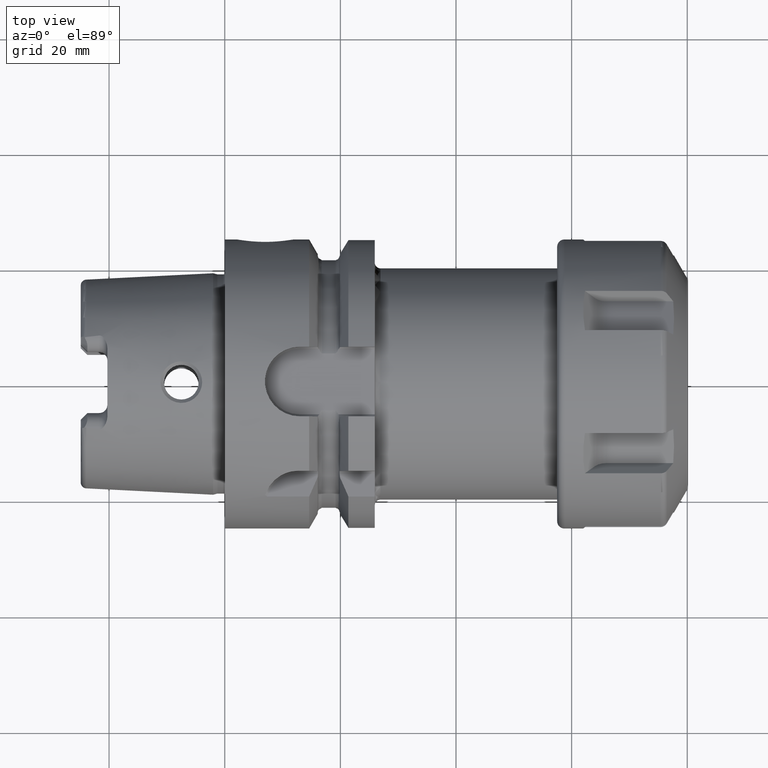
[diagram: clean part render]
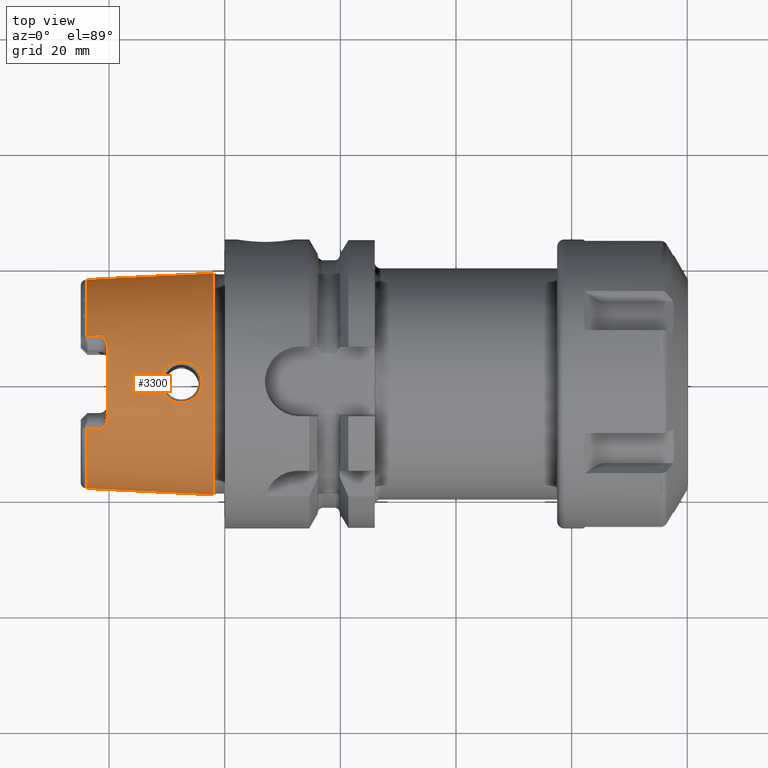
[diagram: same view with one face highlighted and labeled with its STEP entity id]
A machine part, top view. The second image highlights one B-rep face of the part: STEP entity #3300.
In plain terms, the highlighted conical surface has half-angle 2.868 deg.
Its self-contained STEP definition (entity closure, byte-faithful):
#2=CARTESIAN_POINT('',(-2.395003724237E1,-7.848512546022E0,1.626E1));
#3=CARTESIAN_POINT('',(-2.357924685714E1,-7.891247063705E0,1.626E1));
#4=CARTESIAN_POINT('',(-2.283344964494E1,-7.976635944030E0,1.626E1));
#5=CARTESIAN_POINT('',(-2.207922143332E1,-8.061880664518E0,1.626E1));
#6=CARTESIAN_POINT('',(-2.17E1,-8.104470797584E0,1.626E1));
#8=CARTESIAN_POINT('',(-2.03E1,0.E0,0.E0));
#9=DIRECTION('',(1.E0,0.E0,0.E0));
#10=DIRECTION('',(0.E0,3.252089046527E-1,9.456421988969E-1));
#11=AXIS2_PLACEMENT_3D('',#8,#9,#10);
#13=CARTESIAN_POINT('',(-2.17E1,8.104470797584E0,1.626E1));
#14=CARTESIAN_POINT('',(-2.207921342399E1,8.061881564041E0,1.626E1));
#15=CARTESIAN_POINT('',(-2.283343362880E1,7.976637765712E0,1.626E1));
#16=CARTESIAN_POINT('',(-2.357923885045E1,7.891247986496E0,1.626E1));
#17=CARTESIAN_POINT('',(-2.395003724237E1,7.848512546022E0,1.626E1));
#19=CARTESIAN_POINT('',(-2.E0,0.E0,0.E0));
#20=DIRECTION('',(1.E0,0.E0,0.E0));
#21=DIRECTION('',(0.E0,1.E0,0.E0));
#22=AXIS2_PLACEMENT_3D('',#19,#20,#21);
#24=CARTESIAN_POINT('',(-1.109929870960E1,-3.014221416256E-9,1.869887476944E1));
#25=CARTESIAN_POINT('',(-1.109945925242E1,1.886319535952E-1,1.869886672624E1));
#26=CARTESIAN_POINT('',(-1.107009168020E1,5.664763956957E-1,1.869480469033E1));
#27=CARTESIAN_POINT('',(-1.092852645341E1,1.148622081174E0,1.867514320096E1));
#28=CARTESIAN_POINT('',(-1.068761462296E1,1.704920402697E0,1.864430827966E1));
#29=CARTESIAN_POINT('',(-1.035800427398E1,2.210391705650E0,1.860721858945E1));
#30=CARTESIAN_POINT('',(-9.956571457299E0,2.646528342491E0,1.856998438485E1));
#31=CARTESIAN_POINT('',(-9.482180445587E0,3.015935220411E0,1.853715943967E1));
#32=CARTESIAN_POINT('',(-8.954999291132E0,3.300109899598E0,1.851503858938E1));
#33=CARTESIAN_POINT('',(-8.389140640557E0,3.493968846930E0,1.850796335816E1));
#34=CARTESIAN_POINT('',(-7.797320683708E0,3.593006921983E0,1.851902489885E1));
#35=CARTESIAN_POINT('',(-7.195102304437E0,3.593647232189E0,1.854964302437E1));
#36=CARTESIAN_POINT('',(-6.600491430740E0,3.495005174178E0,1.859898554839E1));
#37=CARTESIAN_POINT('',(-6.030596486868E0,3.299291684191E0,1.866403807124E1));
#38=CARTESIAN_POINT('',(-5.501482393751E0,3.011836541822E0,1.873990477193E1));
#39=CARTESIAN_POINT('',(-5.029104687073E0,2.639928583606E0,1.882027271501E1));
#40=CARTESIAN_POINT('',(-4.631634616367E0,2.203529810045E0,1.889690659120E1));
#41=CARTESIAN_POINT('',(-4.305482049942E0,1.697229296807E0,1.896603905152E1));
#42=CARTESIAN_POINT('',(-4.067927972751E0,1.141444662126E0,1.901987475357E1));
#43=CARTESIAN_POINT('',(-3.929055735054E0,5.612533791160E-1,1.905280029071E1));
#44=CARTESIAN_POINT('',(-3.900610911648E0,1.865123193107E-1,1.905953154444E1));
#45=CARTESIAN_POINT('',(-3.900703803433E0,4.688328467960E-10,1.905952689056E1));
#47=CARTESIAN_POINT('',(-3.900703803433E0,4.688328467960E-10,1.905952689056E1));
#48=CARTESIAN_POINT('',(-3.900565316566E0,-1.869068172543E-1,1.905953382875E1));
#49=CARTESIAN_POINT('',(-3.929209078756E0,-5.619643930347E-1,1.905275967237E1));
#50=CARTESIAN_POINT('',(-4.067587416071E0,-1.139939244924E0,1.901996042633E1));
#51=CARTESIAN_POINT('',(-4.304083353262E0,-1.694649477574E0,1.896633950966E1));
#52=CARTESIAN_POINT('',(-4.630377715431E0,-2.202039946174E0,1.889716591493E1));
#53=CARTESIAN_POINT('',(-5.030592742710E0,-2.641727212383E0,1.881996573115E1));
#54=CARTESIAN_POINT('',(-5.506115942833E0,-3.014998208087E0,1.873916244837E1));
#55=CARTESIAN_POINT('',(-6.036759347171E0,-3.302003787672E0,1.866323991975E1));
#56=CARTESIAN_POINT('',(-6.606224693834E0,-3.496380993107E0,1.859843104427E1));
#57=CARTESIAN_POINT('',(-7.200154597760E0,-3.594034785278E0,1.854930943768E1));
#58=CARTESIAN_POINT('',(-7.802229994140E0,-3.592594248023E0,1.851885498035E1));
#59=CARTESIAN_POINT('',(-8.394131860627E0,-3.492723564974E0,1.850794649148E1));
#60=CARTESIAN_POINT('',(-8.959854335096E0,-3.297955703516E0,1.851517847778E1));
#61=CARTESIAN_POINT('',(-9.485898814950E0,-3.013450655427E0,1.853737508929E1));
#62=CARTESIAN_POINT('',(-9.958289131427E0,-2.644672127726E0,1.857015107163E1));
#63=CARTESIAN_POINT('',(-1.035781579914E1,-2.210534337623E0,1.860719549656E1));
#64=CARTESIAN_POINT('',(-1.068684091883E1,-1.706221052324E0,1.864422260745E1));
#65=CARTESIAN_POINT('',(-1.092821591145E1,-1.149779213026E0,1.867509790374E1));
#66=CARTESIAN_POINT('',(-1.107015122039E1,-5.663437022187E-1,1.869481438399E1));
#67=CARTESIAN_POINT('',(-1.109940105467E1,-1.885312797170E-1,1.869886964195E1));
#68=CARTESIAN_POINT('',(-1.109929870960E1,-3.014221416256E-9,1.869887476944E1));
#254=CARTESIAN_POINT('',(-2.088194182380E1,7.65E0,1.652387464585E1));
#255=CARTESIAN_POINT('',(-2.078252967156E1,7.507241224245E0,1.659545558861E1));
#256=CARTESIAN_POINT('',(-2.061118229026E1,7.217898198343E0,1.673432166657E1));
#257=CARTESIAN_POINT('',(-2.042453343151E1,6.765088338183E0,1.693246351741E1));
#258=CARTESIAN_POINT('',(-2.032087894102E1,6.330896569896E0,1.710473583165E1));
#259=CARTESIAN_POINT('',(-2.03E1,6.061283482817E0,1.720184088309E1));
#260=CARTESIAN_POINT('',(-2.03E1,5.931150246788E0,1.724659405422E1));
#317=CARTESIAN_POINT('',(-2.395003724237E1,0.E0,0.E0));
#318=DIRECTION('',(1.E0,0.E0,0.E0));
#319=DIRECTION('',(0.E0,1.E0,0.E0));
#320=AXIS2_PLACEMENT_3D('',#317,#318,#319);
#391=CARTESIAN_POINT('',(-2.395003724237E1,0.E0,0.E0));
#392=DIRECTION('',(1.E0,0.E0,0.E0));
#393=DIRECTION('',(0.E0,-4.346977410045E-1,9.005764120637E-1));
#394=AXIS2_PLACEMENT_3D('',#391,#392,#393);
#557=DIRECTION('',(-9.987473526255E-1,5.003724236654E-2,0.E0));
#558=VECTOR('',#557,2.197756738445E1);
#559=CARTESIAN_POINT('',(-2.E0,-1.91548E1,0.E0));
#560=LINE('',#559,#558);
#566=DIRECTION('',(-9.987473526255E-1,-5.003724236654E-2,0.E0));
#567=VECTOR('',#566,2.197756738445E1);
#568=CARTESIAN_POINT('',(-2.E0,1.91548E1,0.E0));
#569=LINE('',#568,#567);
#2652=CARTESIAN_POINT('',(-2.03E1,-5.931150246788E0,1.724659405422E1));
#2653=CARTESIAN_POINT('',(-2.03E1,-6.061334007092E0,1.720182350766E1));
#2654=CARTESIAN_POINT('',(-2.032090311364E1,-6.331072330559E0,
1.710467013439E1));
#2655=CARTESIAN_POINT('',(-2.042460969072E1,-6.765396673643E0,
1.693234067442E1));
#2656=CARTESIAN_POINT('',(-2.061156183678E1,-7.218659036027E0,
1.673397288432E1));
#2657=CARTESIAN_POINT('',(-2.078273524221E1,-7.507536429743E0,
1.659530756908E1));
#2658=CARTESIAN_POINT('',(-2.088194182380E1,-7.65E0,1.652387464585E1));
#2730=CARTESIAN_POINT('',(-2.088194182380E1,-7.65E0,1.652387464585E1));
#2731=CARTESIAN_POINT('',(-2.092084236684E1,-7.705862324432E0,
1.649586461405E1));
#2732=CARTESIAN_POINT('',(-2.100216211286E1,-7.807981545915E0,
1.644339247740E1));
#2733=CARTESIAN_POINT('',(-2.113409150154E1,-7.931926358997E0,
1.637652980081E1));
#2734=CARTESIAN_POINT('',(-2.127636416926E1,-8.025677176369E0,
1.632276786529E1));
#2735=CARTESIAN_POINT('',(-2.142000730447E1,-8.084211699040E0,
1.628576763274E1));
#2736=CARTESIAN_POINT('',(-2.155951099500E1,-8.110794838366E0,
1.626471314411E1));
#2737=CARTESIAN_POINT('',(-2.165342169015E1,-8.109701979792E0,1.626E1));
#2738=CARTESIAN_POINT('',(-2.17E1,-8.104470797584E0,1.626E1));
#2748=CARTESIAN_POINT('',(-2.17E1,8.104470797584E0,1.626E1));
#2749=CARTESIAN_POINT('',(-2.164341871280E1,8.110825408214E0,1.626E1));
#2750=CARTESIAN_POINT('',(-2.152922643185E1,8.110130493423E0,1.626674474105E1));
#2751=CARTESIAN_POINT('',(-2.135380007883E1,8.063783507483E0,1.629963066121E1));
#2752=CARTESIAN_POINT('',(-2.118690630545E1,7.973411379162E0,1.635344174223E1));
#2753=CARTESIAN_POINT('',(-2.102599266022E1,7.836188133821E0,1.642872288676E1));
#2754=CARTESIAN_POINT('',(-2.092846952965E1,7.716815154647E0,1.649037273512E1));
#2755=CARTESIAN_POINT('',(-2.088194182380E1,7.65E0,1.652387464585E1));
#2773=CARTESIAN_POINT('',(-2.E0,1.91548E1,0.E0));
#2774=CARTESIAN_POINT('',(-2.E0,-1.91548E1,0.E0));
#2775=VERTEX_POINT('',#2773);
#2776=VERTEX_POINT('',#2774);
#2777=CARTESIAN_POINT('',(-2.395003724237E1,1.805510313416E1,0.E0));
#2778=VERTEX_POINT('',#2777);
#2779=CARTESIAN_POINT('',(-2.395003724237E1,-1.805510313416E1,0.E0));
#2780=VERTEX_POINT('',#2779);
#2793=CARTESIAN_POINT('',(-2.395003724237E1,7.848512546022E0,1.626E1));
#2794=VERTEX_POINT('',#2793);
#2795=CARTESIAN_POINT('',(-2.395003724237E1,-7.848512546022E0,1.626E1));
#2796=VERTEX_POINT('',#2795);
#2809=CARTESIAN_POINT('',(-2.03E1,5.931150246788E0,1.724659405422E1));
#2810=VERTEX_POINT('',#2809);
#2813=CARTESIAN_POINT('',(-2.17E1,8.104470797584E0,1.626E1));
#2814=VERTEX_POINT('',#2813);
#2815=CARTESIAN_POINT('',(-2.03E1,-5.931150246788E0,1.724659405422E1));
#2816=VERTEX_POINT('',#2815);
#2819=CARTESIAN_POINT('',(-2.17E1,-8.104470797584E0,1.626E1));
#2820=VERTEX_POINT('',#2819);
#2821=VERTEX_POINT('',#2755);
#2822=VERTEX_POINT('',#2730);
#3107=VERTEX_POINT('',#24);
#3108=VERTEX_POINT('',#45);
#3263=CARTESIAN_POINT('',(-1.297501862118E1,0.E0,0.E0));
#3264=DIRECTION('',(1.E0,0.E0,0.E0));
#3265=DIRECTION('',(0.E0,-1.E0,0.E0));
#3266=AXIS2_PLACEMENT_3D('',#3263,#3264,#3265);
#3267=CONICAL_SURFACE('',#3266,1.860495156708E1,2.868120487315E0);
#3269=ORIENTED_EDGE('',*,*,#3268,.T.);
#3271=ORIENTED_EDGE('',*,*,#3270,.F.);
#3273=ORIENTED_EDGE('',*,*,#3272,.F.);
#3275=ORIENTED_EDGE('',*,*,#3274,.F.);
#3277=ORIENTED_EDGE('',*,*,#3276,.F.);
#3279=ORIENTED_EDGE('',*,*,#3278,.F.);
#3281=ORIENTED_EDGE('',*,*,#3280,.T.);
#3283=ORIENTED_EDGE('',*,*,#3282,.F.);
#3285=ORIENTED_EDGE('',*,*,#3284,.F.);
#3287=ORIENTED_EDGE('',*,*,#3286,.T.);
#3289=ORIENTED_EDGE('',*,*,#3288,.T.);
#3291=ORIENTED_EDGE('',*,*,#3290,.F.);
#3292=EDGE_LOOP('',(#3269,#3271,#3273,#3275,#3277,#3279,#3281,#3283,#3285,#3287,
#3289,#3291));
#3293=FACE_OUTER_BOUND('',#3292,.F.);
#3295=ORIENTED_EDGE('',*,*,#3294,.F.);
#3297=ORIENTED_EDGE('',*,*,#3296,.F.);
#3298=EDGE_LOOP('',(#3295,#3297));
#3299=FACE_BOUND('',#3298,.F.);
#3300=ADVANCED_FACE('',(#3293,#3299),#3267,.T.);
#7=B_SPLINE_CURVE_WITH_KNOTS('',3,(#2,#3,#4,#5,#6),.UNSPECIFIED.,.F.,.F.,(4,1,
4),(0.E0,5.E-1,1.E0),.UNSPECIFIED.);
#12=CIRCLE('',#11,1.823797E1);
#18=B_SPLINE_CURVE_WITH_KNOTS('',3,(#13,#14,#15,#16,#17),.UNSPECIFIED.,.F.,.F.,(
4,1,4),(0.E0,5.E-1,1.E0),.UNSPECIFIED.);
#23=CIRCLE('',#22,1.91548E1);
#46=B_SPLINE_CURVE_WITH_KNOTS('',3,(#24,#25,#26,#27,#28,#29,#30,#31,#32,#33,#34,
#35,#36,#37,#38,#39,#40,#41,#42,#43,#44,#45),.UNSPECIFIED.,.F.,.F.,(4,1,1,1,1,1,
1,1,1,1,1,1,1,1,1,1,1,1,1,4),(0.E0,5.263157894737E-2,1.052631578947E-1,
1.578947368421E-1,2.105263157895E-1,2.631578947368E-1,3.157894736842E-1,
3.684210526316E-1,4.210526315789E-1,4.736842105263E-1,5.263157894737E-1,
5.789473684211E-1,6.315789473684E-1,6.842105263158E-1,7.368421052632E-1,
7.894736842105E-1,8.421052631579E-1,8.947368421053E-1,9.473684210526E-1,1.E0),
.UNSPECIFIED.);
#69=B_SPLINE_CURVE_WITH_KNOTS('',3,(#47,#48,#49,#50,#51,#52,#53,#54,#55,#56,#57,
#58,#59,#60,#61,#62,#63,#64,#65,#66,#67,#68),.UNSPECIFIED.,.F.,.F.,(4,1,1,1,1,1,
1,1,1,1,1,1,1,1,1,1,1,1,1,4),(0.E0,5.263157894737E-2,1.052631578947E-1,
1.578947368421E-1,2.105263157895E-1,2.631578947368E-1,3.157894736842E-1,
3.684210526316E-1,4.210526315789E-1,4.736842105263E-1,5.263157894737E-1,
5.789473684211E-1,6.315789473684E-1,6.842105263158E-1,7.368421052632E-1,
7.894736842105E-1,8.421052631579E-1,8.947368421053E-1,9.473684210526E-1,1.E0),
.UNSPECIFIED.);
#261=B_SPLINE_CURVE_WITH_KNOTS('',3,(#254,#255,#256,#257,#258,#259,#260),
.UNSPECIFIED.,.F.,.F.,(4,1,1,1,4),(0.E0,2.5E-1,5.E-1,7.5E-1,1.E0),
.UNSPECIFIED.);
#321=CIRCLE('',#320,1.805510313416E1);
#395=CIRCLE('',#394,1.805510313416E1);
#2659=B_SPLINE_CURVE_WITH_KNOTS('',3,(#2652,#2653,#2654,#2655,#2656,#2657,
#2658),.UNSPECIFIED.,.F.,.F.,(4,1,1,1,4),(0.E0,2.5E-1,5.E-1,7.5E-1,1.E0),
.UNSPECIFIED.);
#2739=B_SPLINE_CURVE_WITH_KNOTS('',3,(#2730,#2731,#2732,#2733,#2734,#2735,#2736,
#2737,#2738),.UNSPECIFIED.,.F.,.F.,(4,1,1,1,1,1,4),(0.E0,1.666666666667E-1,
3.333333333333E-1,5.E-1,6.666666666667E-1,8.333333333333E-1,1.E0),
.UNSPECIFIED.);
#2756=B_SPLINE_CURVE_WITH_KNOTS('',3,(#2748,#2749,#2750,#2751,#2752,#2753,#2754,
#2755),.UNSPECIFIED.,.F.,.F.,(4,1,1,1,1,4),(0.E0,2.E-1,4.E-1,6.E-1,8.E-1,1.E0),
.UNSPECIFIED.);
#3268=EDGE_CURVE('',#2796,#2820,#7,.T.);
#3270=EDGE_CURVE('',#2822,#2820,#2739,.T.);
#3272=EDGE_CURVE('',#2816,#2822,#2659,.T.);
#3274=EDGE_CURVE('',#2810,#2816,#12,.T.);
#3276=EDGE_CURVE('',#2821,#2810,#261,.T.);
#3278=EDGE_CURVE('',#2814,#2821,#2756,.T.);
#3280=EDGE_CURVE('',#2814,#2794,#18,.T.);
#3282=EDGE_CURVE('',#2778,#2794,#321,.T.);
#3284=EDGE_CURVE('',#2775,#2778,#569,.T.);
#3286=EDGE_CURVE('',#2775,#2776,#23,.T.);
#3288=EDGE_CURVE('',#2776,#2780,#560,.T.);
#3290=EDGE_CURVE('',#2796,#2780,#395,.T.);
#3294=EDGE_CURVE('',#3107,#3108,#46,.T.);
#3296=EDGE_CURVE('',#3108,#3107,#69,.T.);